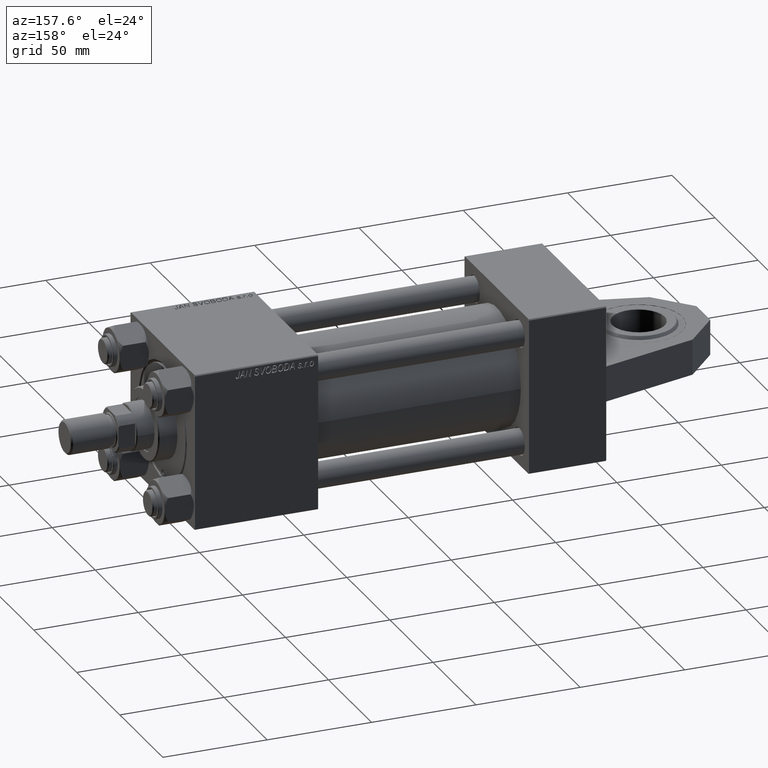
[diagram: clean part render]
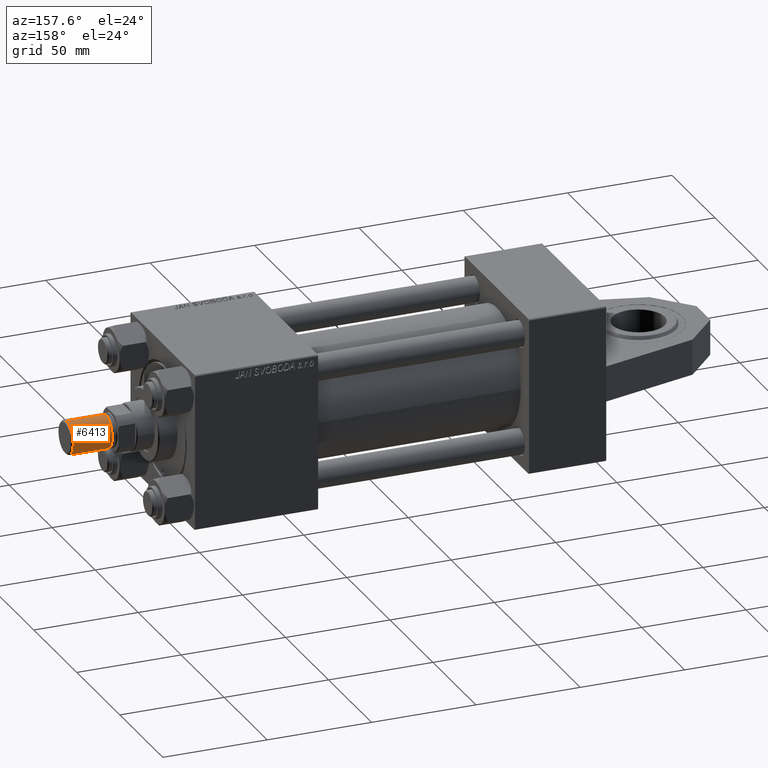
[diagram: same view with one face highlighted and labeled with its STEP entity id]
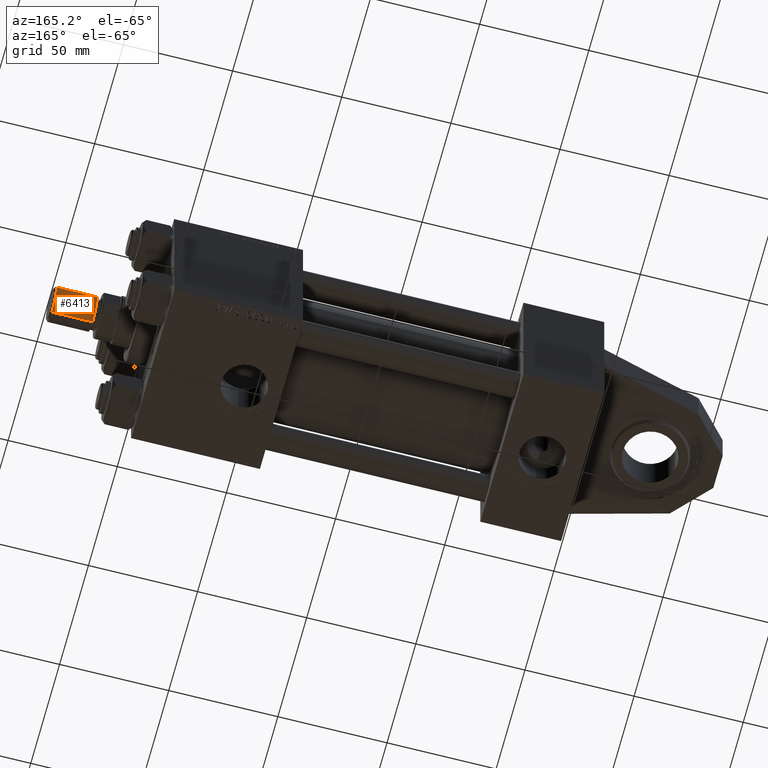
[diagram: same view with one face highlighted and labeled with its STEP entity id]
A machine part, auxiliary view. The second image highlights one B-rep face of the part: STEP entity #6413.
A second angle (auxiliary view) of the same face is appended — the face is thin or edge-on in the first view.
In plain terms, the highlighted cylindrical surface (edge-blend (fillet) strip) has radius 8 mm, axis along (1, -0, -0).
Its self-contained STEP definition (entity closure, byte-faithful):
#2176 = EDGE_CURVE ( 'NONE', #32226, #33661, #39337, .T. ) ;
#2580 = DIRECTION ( 'NONE',  ( 0.000000000000000000, 0.000000000000000000, 1.000000000000000000 ) ) ;
#2842 = DIRECTION ( 'NONE',  ( 1.000000000000000000, 0.000000000000000000, 0.000000000000000000 ) ) ;
#3442 = VERTEX_POINT ( 'NONE', #23633 ) ;
#3496 = EDGE_LOOP ( 'NONE', ( #24635, #45834, #24055, #20041 ) ) ;
#4122 = EDGE_CURVE ( 'NONE', #8014, #33661, #29554, .T. ) ;
#5966 = DIRECTION ( 'NONE',  ( -1.000000000000000000, 0.000000000000000000, 0.000000000000000000 ) ) ;
#6413 = ADVANCED_FACE ( 'NONE', ( #17234 ), #29760, .T. ) ;
#7842 = DIRECTION ( 'NONE',  ( -0.000000000000000000, -0.000000000000000000, -1.000000000000000000 ) ) ;
#8014 = VERTEX_POINT ( 'NONE', #26651 ) ;
#11394 = CARTESIAN_POINT ( 'NONE',  ( -8.000000000000000000, 0.000000000000000000, 0.8000000000000090372 ) ) ;
#12679 = LINE ( 'NONE', #42950, #33923 ) ;
#14393 = DIRECTION ( 'NONE',  ( -0.000000000000000000, -0.000000000000000000, -1.000000000000000000 ) ) ;
#16101 = CARTESIAN_POINT ( 'NONE',  ( 8.000000000000000000, 9.797174393178825657E-16, 0.8000000000000090372 ) ) ;
#17234 = FACE_OUTER_BOUND ( 'NONE', #3496, .T. ) ;
#17905 = AXIS2_PLACEMENT_3D ( 'NONE', #37916, #2580, #2842 ) ;
#20041 = ORIENTED_EDGE ( 'NONE', *, *, #4122, .F. ) ;
#21877 = CARTESIAN_POINT ( 'NONE',  ( -8.000000000000000000, 0.000000000000000000, 19.50000000000000000 ) ) ;
#23633 = CARTESIAN_POINT ( 'NONE',  ( 8.000000000000000000, 9.797174393178825657E-16, 19.50000000000000000 ) ) ;
#23748 = CARTESIAN_POINT ( 'NONE',  ( 0.000000000000000000, 0.000000000000000000, 0.8000000000000090372 ) ) ;
#24055 = ORIENTED_EDGE ( 'NONE', *, *, #2176, .T. ) ;
#24635 = ORIENTED_EDGE ( 'NONE', *, *, #42581, .F. ) ;
#26272 = EDGE_CURVE ( 'NONE', #3442, #32226, #12679, .T. ) ;
#26651 = CARTESIAN_POINT ( 'NONE',  ( -8.000000000000000000, 0.000000000000000000, 19.50000000000000000 ) ) ;
#28587 = DIRECTION ( 'NONE',  ( -0.000000000000000000, -0.000000000000000000, 1.000000000000000000 ) ) ;
#29554 = LINE ( 'NONE', #21877, #35309 ) ;
#29760 = CYLINDRICAL_SURFACE ( 'NONE', #41134, 8.000000000000000000 ) ;
#32226 = VERTEX_POINT ( 'NONE', #16101 ) ;
#33661 = VERTEX_POINT ( 'NONE', #11394 ) ;
#33923 = VECTOR ( 'NONE', #7842, 1000.000000000000000 ) ;
#35309 = VECTOR ( 'NONE', #45229, 1000.000000000000000 ) ;
#37916 = CARTESIAN_POINT ( 'NONE',  ( 0.000000000000000000, 0.000000000000000000, 19.50000000000000000 ) ) ;
#39337 = CIRCLE ( 'NONE', #50002, 8.000000000000000000 ) ;
#41056 = CARTESIAN_POINT ( 'NONE',  ( 0.000000000000000000, 0.000000000000000000, 19.50000000000000000 ) ) ;
#41134 = AXIS2_PLACEMENT_3D ( 'NONE', #41056, #14393, #5966 ) ;
#42581 = EDGE_CURVE ( 'NONE', #3442, #8014, #50663, .T. ) ;
#42950 = CARTESIAN_POINT ( 'NONE',  ( 8.000000000000000000, 9.797174393178825657E-16, 19.50000000000000000 ) ) ;
#43752 = DIRECTION ( 'NONE',  ( 1.000000000000000000, 0.000000000000000000, 0.000000000000000000 ) ) ;
#45229 = DIRECTION ( 'NONE',  ( -0.000000000000000000, -0.000000000000000000, -1.000000000000000000 ) ) ;
#45834 = ORIENTED_EDGE ( 'NONE', *, *, #26272, .T. ) ;
#50002 = AXIS2_PLACEMENT_3D ( 'NONE', #23748, #28587, #43752 ) ;
#50663 = CIRCLE ( 'NONE', #17905, 8.000000000000000000 ) ;